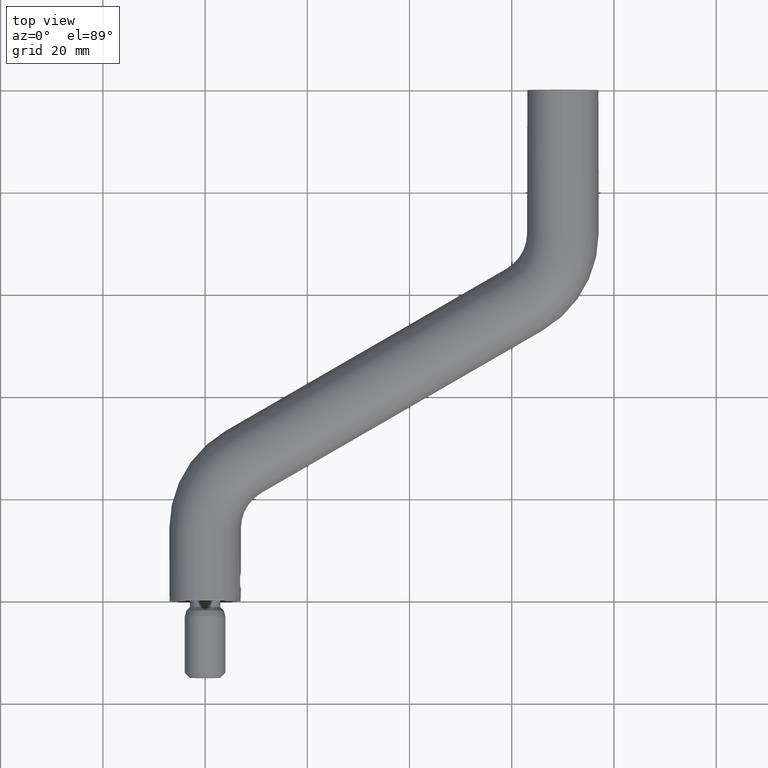
[diagram: clean part render]
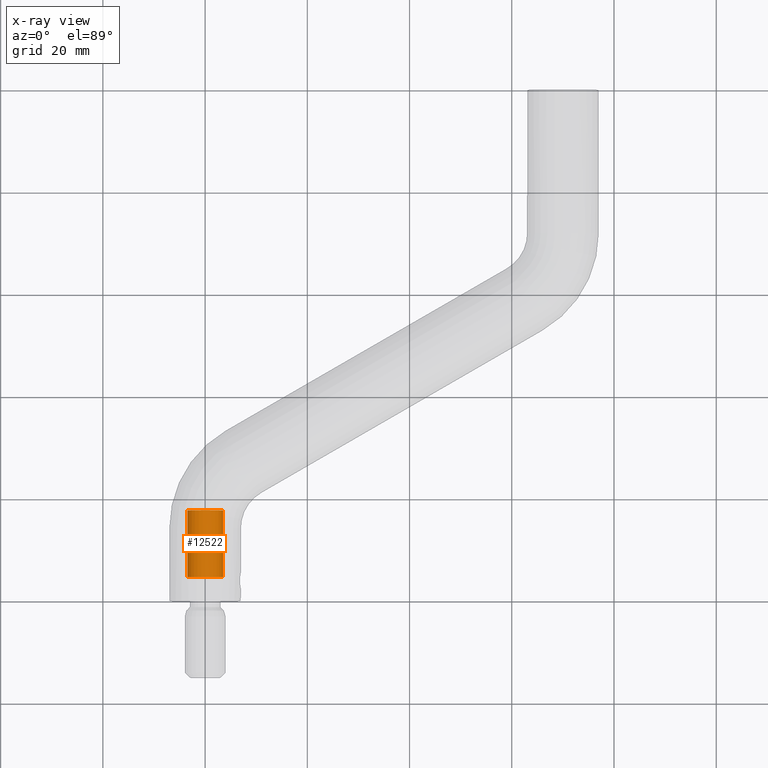
[diagram: x-ray — body ghosted, one internal face saturated and labeled with its STEP entity id]
A machine part, top view, then the same camera in x-ray: the body is ghosted and one INTERNAL B-rep face — a face not visible from any outside direction — is saturated and labeled: STEP entity #12522.
In plain terms, the highlighted cylindrical surface (edge-blend (fillet) strip) has radius 3.5 mm, axis along (-0, -1, -0).
Its self-contained STEP definition (entity closure, byte-faithful):
#377 = LINE ( 'NONE', #6104, #9446 ) ;
#677 = LINE ( 'NONE', #9145, #13417 ) ;
#1187 = DIRECTION ( 'NONE',  ( 1.000000000000000000, 0.0000000000000000000, 0.0000000000000000000 ) ) ;
#1304 = AXIS2_PLACEMENT_3D ( 'NONE', #4829, #4775, #8516 ) ;
#1621 = ORIENTED_EDGE ( 'NONE', *, *, #6086, .T. ) ;
#2340 = DIRECTION ( 'NONE',  ( -0.0000000000000000000, -1.000000000000000000, -0.0000000000000000000 ) ) ;
#2410 = CARTESIAN_POINT ( 'NONE',  ( 0.0000000000000000000, 4.649999999999995000, 3.499999999999999600 ) ) ;
#2422 = DIRECTION ( 'NONE',  ( -1.156482317317871500E-016, -1.000000000000000000, -0.0000000000000000000 ) ) ;
#3264 = AXIS2_PLACEMENT_3D ( 'NONE', #7248, #2340, #4888 ) ;
#3868 = CARTESIAN_POINT ( 'NONE',  ( 2.081668171172168500E-015, 18.00000000000000000, 0.0000000000000000000 ) ) ;
#4028 = ORIENTED_EDGE ( 'NONE', *, *, #13132, .F. ) ;
#4775 = DIRECTION ( 'NONE',  ( -1.156482317317865600E-016, -1.000000000000000000, 0.0000000000000000000 ) ) ;
#4829 = CARTESIAN_POINT ( 'NONE',  ( 2.052756113239221200E-015, 17.74999999999999600, 0.0000000000000000000 ) ) ;
#4888 = DIRECTION ( 'NONE',  ( 0.0000000000000000000, 0.0000000000000000000, -1.000000000000000000 ) ) ;
#5830 = CIRCLE ( 'NONE', #6639, 3.499999999999999600 ) ;
#6086 = EDGE_CURVE ( 'NONE', #12859, #10266, #15245, .T. ) ;
#6104 = CARTESIAN_POINT ( 'NONE',  ( 3.500000000000002200, 18.00000000000000000, 0.0000000000000000000 ) ) ;
#6178 = DIRECTION ( 'NONE',  ( -1.156482317317871500E-016, -1.000000000000000000, -0.0000000000000000000 ) ) ;
#6461 = EDGE_CURVE ( 'NONE', #12859, #14735, #377, .T. ) ;
#6639 = AXIS2_PLACEMENT_3D ( 'NONE', #7787, #7681, #11459 ) ;
#7248 = CARTESIAN_POINT ( 'NONE',  ( 0.0000000000000000000, 4.649999999999995000, 0.0000000000000000000 ) ) ;
#7681 = DIRECTION ( 'NONE',  ( -0.0000000000000000000, -1.000000000000000000, -0.0000000000000000000 ) ) ;
#7787 = CARTESIAN_POINT ( 'NONE',  ( 0.0000000000000000000, 4.649999999999995000, 0.0000000000000000000 ) ) ;
#8125 = CARTESIAN_POINT ( 'NONE',  ( -3.499999999999999600, 4.649999999999995000, 4.286263797015737100E-016 ) ) ;
#8187 = ORIENTED_EDGE ( 'NONE', *, *, #9081, .F. ) ;
#8445 = EDGE_CURVE ( 'NONE', #10266, #10974, #677, .T. ) ;
#8516 = DIRECTION ( 'NONE',  ( -1.000000000000000000, 0.0000000000000000000, 0.0000000000000000000 ) ) ;
#8885 = FACE_OUTER_BOUND ( 'NONE', #15156, .T. ) ;
#8967 = ORIENTED_EDGE ( 'NONE', *, *, #8445, .T. ) ;
#9081 = EDGE_CURVE ( 'NONE', #14307, #10974, #10906, .T. ) ;
#9145 = CARTESIAN_POINT ( 'NONE',  ( -3.499999999999997800, 18.00000000000000000, 4.286263797015736600E-016 ) ) ;
#9446 = VECTOR ( 'NONE', #2422, 1000.000000000000000 ) ;
#10266 = VERTEX_POINT ( 'NONE', #13933 ) ;
#10906 = CIRCLE ( 'NONE', #3264, 3.499999999999999600 ) ;
#10974 = VERTEX_POINT ( 'NONE', #8125 ) ;
#11459 = DIRECTION ( 'NONE',  ( 0.0000000000000000000, 0.0000000000000000000, -1.000000000000000000 ) ) ;
#11463 = ORIENTED_EDGE ( 'NONE', *, *, #6461, .F. ) ;
#11657 = CARTESIAN_POINT ( 'NONE',  ( 3.499999999999999600, 4.649999999999995000, 0.0000000000000000000 ) ) ;
#12019 = DIRECTION ( 'NONE',  ( -1.156482317317871500E-016, -1.000000000000000000, -0.0000000000000000000 ) ) ;
#12522 = ADVANCED_FACE ( 'NONE', ( #8885 ), #15464, .T. ) ;
#12859 = VERTEX_POINT ( 'NONE', #13074 ) ;
#13074 = CARTESIAN_POINT ( 'NONE',  ( 3.500000000000002200, 17.74999999999999600, 0.0000000000000000000 ) ) ;
#13132 = EDGE_CURVE ( 'NONE', #14735, #14307, #5830, .T. ) ;
#13417 = VECTOR ( 'NONE', #12019, 1000.000000000000000 ) ;
#13933 = CARTESIAN_POINT ( 'NONE',  ( -3.499999999999997800, 17.74999999999999600, 4.286263797015736600E-016 ) ) ;
#14307 = VERTEX_POINT ( 'NONE', #2410 ) ;
#14652 = AXIS2_PLACEMENT_3D ( 'NONE', #3868, #6178, #1187 ) ;
#14735 = VERTEX_POINT ( 'NONE', #11657 ) ;
#15156 = EDGE_LOOP ( 'NONE', ( #1621, #8967, #8187, #4028, #11463 ) ) ;
#15245 = CIRCLE ( 'NONE', #1304, 3.500000000000000000 ) ;
#15464 = CYLINDRICAL_SURFACE ( 'NONE', #14652, 3.500000000000000000 ) ;